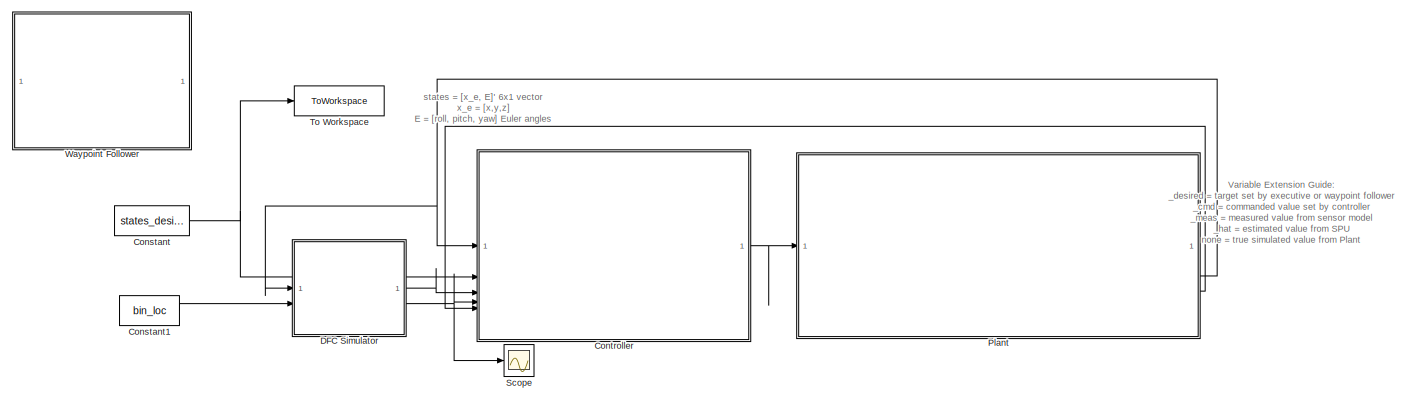
[diagram: root canvas - part 1/3, full width, top band]
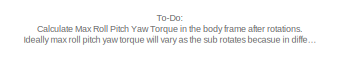
[diagram: root canvas - part 2/3, top right region]
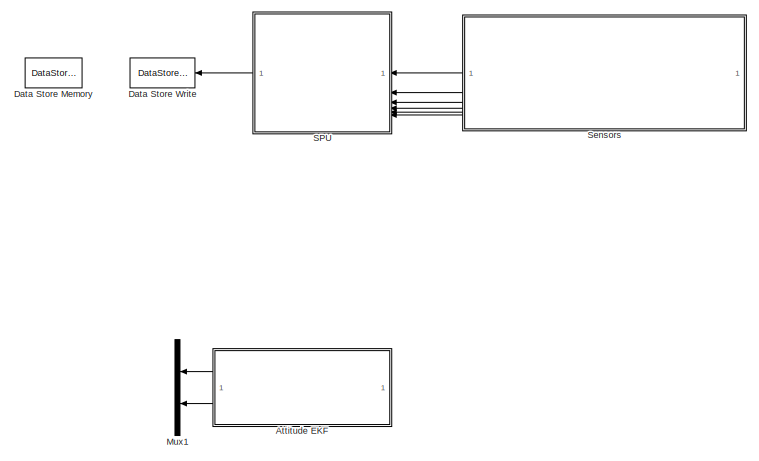
[diagram: root canvas - part 3/3, bottom center region]
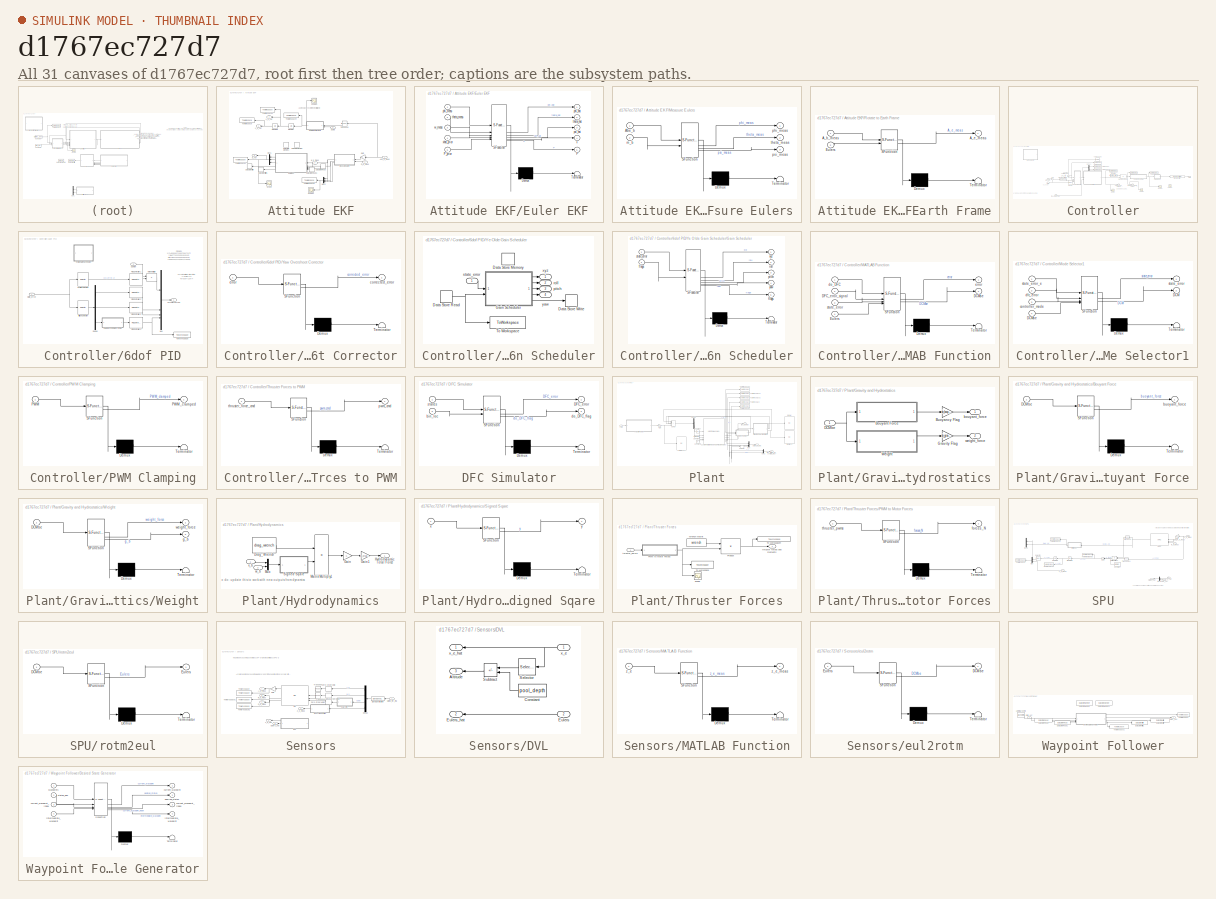
[diagram: thumbnail index - all 31 canvases of the model, root first then tree order]
MODEL slx_d1767ec727d7
KIND model
CONFIG AbsTol = auto
CONFIG EnableMultiTasking = off
CONFIG FixedStep = dt
CONFIG MaxStep = auto
CONFIG MinStep = auto
CONFIG RelTol = 1e-3
CONFIG SampleTimeConstraint = Unconstrained
CONFIG SolverName = FixedStepAuto
CONFIG StartTime = 0.0
CONFIG StopTime = tspan
WORKSPACE source: mxarray member
WORKSPACE Drag_Constants = 1
WORKSPACE mass = [5.51 5.51 5.51 1 1 1]
WORKSPACE mass_6a = [5 5 5 1 1 1]
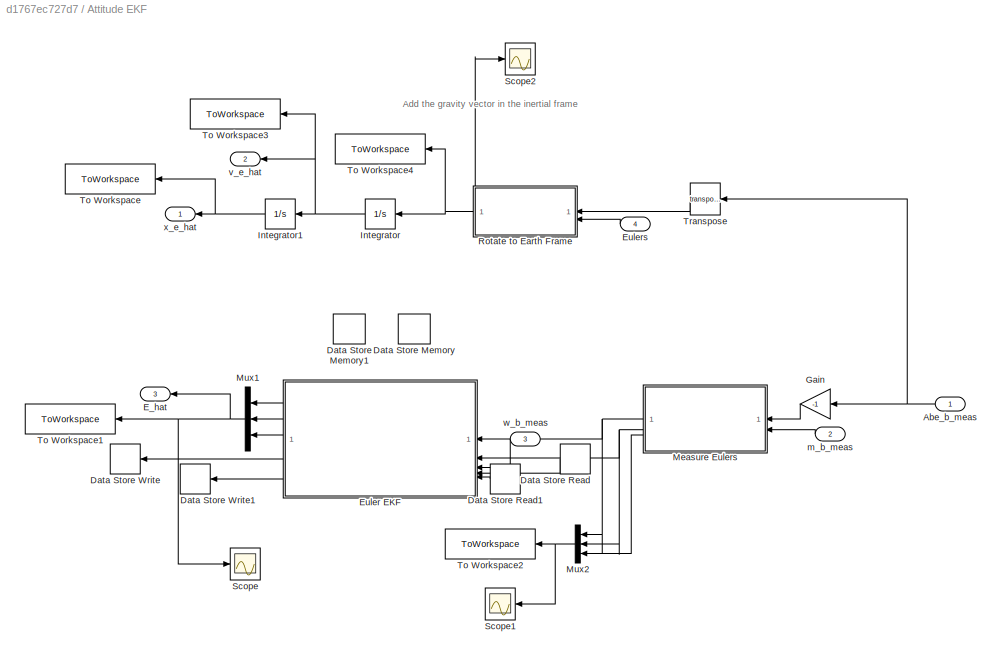
BLOCK [SubSystem] Attitude EKF
  Commented = on
BLOCK [Inport] Attitude EKF/Abe_b_meas
  SampleTime = dt_filter
BLOCK [DataStoreMemory] Attitude EKF/Data Store Memory
  DataStoreName = x_hat
  InitialValue = xhat0
  ShowAdditionalParam = off
  WriteAfterWriteMsg = warning
BLOCK [DataStoreMemory] Attitude EKF/Data Store Memory1
  DataStoreName = P
  InitialValue = P0
  ShowAdditionalParam = off
  WriteAfterWriteMsg = warning
BLOCK [DataStoreRead] Attitude EKF/Data Store Read
  DataStoreName = x_hat
  IndexOptions = Index vector (dialog)
  Indices = 1
  OutputSizes = 1
BLOCK [DataStoreRead] Attitude EKF/Data Store Read1
  DataStoreName = P
  IndexOptions = Index vector (dialog)
  Indices = 1
  OutputSizes = 1
BLOCK [DataStoreWrite] Attitude EKF/Data Store Write
  DataStoreName = x_hat
  IndexOptions = Index vector (dialog)
  Indices = 1
  OutputSizes = 1
BLOCK [DataStoreWrite] Attitude EKF/Data Store Write1
  DataStoreName = P
  IndexOptions = Index vector (dialog)
  Indices = 1
  OutputSizes = 1
BLOCK [Outport] Attitude EKF/E_hat
  Port = 3
BLOCK [SubSystem] Attitude EKF/Euler EKF
  ErrorFcn = Stateflow.Translate.translate
  PermitHierarchicalResolution = ExplicitOnly
  SFBlockType = MATLAB Function
  TreatAsAtomicUnit = on
BLOCK [Demux] Attitude EKF/Euler EKF/ Demux 
  Outputs = 1
BLOCK [S-Function] Attitude EKF/Euler EKF/ SFunction 
  EnableBusSupport = off
  FunctionName = sf_sfun
  Parameters = H,Q,R,dt
  PortCounts = [5 6]
  SFcnIsStateOwnerBlock = off
  SFunctionDeploymentMode = off
  Tag = Stateflow S-Function 8
BLOCK [Terminator] Attitude EKF/Euler EKF/ Terminator 
BLOCK [Outport] Attitude EKF/Euler EKF/P
  Port = 5
BLOCK [Inport] Attitude EKF/Euler EKF/P_prior
  Port = 5
BLOCK [Outport] Attitude EKF/Euler EKF/phi_hat
BLOCK [Inport] Attitude EKF/Euler EKF/phi_meas
BLOCK [Outport] Attitude EKF/Euler EKF/psi_hat
  Port = 3
BLOCK [Outport] Attitude EKF/Euler EKF/theta_hat
  Port = 2
BLOCK [Inport] Attitude EKF/Euler EKF/theta_meas
  Port = 2
BLOCK [Inport] Attitude EKF/Euler EKF/w_meas
  Port = 3
BLOCK [Outport] Attitude EKF/Euler EKF/x
  Port = 4
BLOCK [Inport] Attitude EKF/Euler EKF/xhat_prior
  Port = 4
BLOCK [Inport] Attitude EKF/Eulers
  Port = 4
BLOCK [Gain] Attitude EKF/Gain
  Gain = -1
BLOCK [Integrator] Attitude EKF/Integrator
  InitialCondition = v0_e
BLOCK [Integrator] Attitude EKF/Integrator1
  InitialCondition = x0_e
BLOCK [SubSystem] Attitude EKF/Measure Eulers
  ErrorFcn = Stateflow.Translate.translate
  PermitHierarchicalResolution = ExplicitOnly
  SFBlockType = MATLAB Function
  TreatAsAtomicUnit = on
BLOCK [Demux] Attitude EKF/Measure Eulers/ Demux 
  Outputs = 1
BLOCK [S-Function] Attitude EKF/Measure Eulers/ SFunction 
  EnableBusSupport = off
  FunctionName = sf_sfun
  PortCounts = [2 4]
  SFcnIsStateOwnerBlock = off
  SFunctionDeploymentMode = off
  Tag = Stateflow S-Function 10
BLOCK [Terminator] Attitude EKF/Measure Eulers/ Terminator 
BLOCK [Inport] Attitude EKF/Measure Eulers/Abe_b
BLOCK [Inport] Attitude EKF/Measure Eulers/m_b
  Port = 2
BLOCK [Outport] Attitude EKF/Measure Eulers/phi_meas
BLOCK [Outport] Attitude EKF/Measure Eulers/psi_meas
  Port = 3
BLOCK [Outport] Attitude EKF/Measure Eulers/theta_meas
  Port = 2
BLOCK [Mux] Attitude EKF/Mux1
  DisplayOption = bar
  Inputs = 3
BLOCK [Mux] Attitude EKF/Mux2
  DisplayOption = bar
  Inputs = 3
BLOCK [SubSystem] Attitude EKF/Rotate to Earth Frame
  ErrorFcn = Stateflow.Translate.translate
  LibrarySourceBlock = simulink/User-Defined\nFunctions/MATLAB Function
  PermitHierarchicalResolution = ExplicitOnly
  SFBlockType = MATLAB Function
  TreatAsAtomicUnit = on
BLOCK [Demux] Attitude EKF/Rotate to Earth Frame/ Demux 
  Outputs = 1
BLOCK [S-Function] Attitude EKF/Rotate to Earth Frame/ SFunction 
  EnableBusSupport = off
  FunctionName = sf_sfun
  PortCounts = [2 2]
  SFcnIsStateOwnerBlock = off
  SFunctionDeploymentMode = off
  Tag = Stateflow S-Function 14
BLOCK [Terminator] Attitude EKF/Rotate to Earth Frame/ Terminator 
BLOCK [Inport] Attitude EKF/Rotate to Earth Frame/A_b_meas
BLOCK [Outport] Attitude EKF/Rotate to Earth Frame/A_e_meas
BLOCK [Inport] Attitude EKF/Rotate to Earth Frame/Eulers
  Port = 2
BLOCK [Scope] Attitude EKF/Scope
  ActiveDisplayYMaximum = 3.9244
  ActiveDisplayYMinimum = -3.9191
  DataLoggingVariableName = ScopeData1
  Floating = off
  GraphicalSettings = {"GraphicalSettings":{"LegacySettings":true,"Style":{"AxesScalingProperties":{"AlignXAxis":"Center","AlignYAxis":"Center","AutoScaleXAxisLimits":true,"AxesScaling":"Manual","AxesScalingNumUpdates":10,"ScaleAxesLimitsAtStop":true,"XAxisDataRange":100,"YAxisDataRange":80},"Style":{"AxesColor":"[0 0 0]","ChannelNames":[""],"ColorOrder":"[1 0.909803921568627 0.392156862745098;0.149019607843137 0.54901...<+675ch>  <repeated x5 — deduplicated; at blocks: Scope, Scope1, Scope2>
  LayoutDimensionsString = [1 1]
  MultipleDisplayCache = [{"MaxYLimMag":3.9244,"MaxYLimReal":3.9244,"MinYLimMag":0,"MinYLimReal":-3.9191,"PlotAsMagnitudePhase":false,"ShowGrid":true,"ShowLegend":false,"Title":"%<SignalLabel>","YLabel":""}]
  NumInputPorts = 1
  WasSavedAsWebScope = on
  WindowPosition = [364 389 560 420]
BLOCK [Scope] Attitude EKF/Scope1
  ActiveDisplayYMaximum = 2.1454
  ActiveDisplayYMinimum = -3.603
  DataLoggingVariableName = ScopeData2
  Floating = off
  LayoutDimensionsString = [1 1]
  MultipleDisplayCache = [{"MaxYLimMag":3.603,"MaxYLimReal":2.1454,"MinYLimMag":0,"MinYLimReal":-3.603,"PlotAsMagnitudePhase":false,"ShowGrid":true,"ShowLegend":false,"Title":"%<SignalLabel>","YLabel":""}]
  NumInputPorts = 1
  WasSavedAsWebScope = on
  WindowPosition = [124 174 761 604]
BLOCK [Scope] Attitude EKF/Scope2
  ActiveDisplayYMaximum = 23.469
  ActiveDisplayYMinimum = -10.4743
  DataLoggingVariableName = ScopeData4
  Floating = off
  LayoutDimensionsString = [1 1]
  MultipleDisplayCache = [{"MaxYLimMag":23.469,"MaxYLimReal":23.469,"MinYLimMag":0,"MinYLimReal":-10.4743,"PlotAsMagnitudePhase":false,"ShowGrid":true,"ShowLegend":false,"Title":"%<SignalLabel>","YLabel":""}]
  NumInputPorts = 1
  WasSavedAsWebScope = on
  WindowPosition = [1144 387 560 420]
BLOCK [ToWorkspace] Attitude EKF/To Workspace
  FixptAsFi = on
  MaxDataPoints = inf
  SampleTime = dt_plotting
  SaveFormat = Timeseries
  VariableName = x_e_hat
BLOCK [ToWorkspace] Attitude EKF/To Workspace1
  FixptAsFi = on
  MaxDataPoints = inf
  SampleTime = dt_plotting
  SaveFormat = Timeseries
  VariableName = euler_hat
BLOCK [ToWorkspace] Attitude EKF/To Workspace2
  FixptAsFi = on
  MaxDataPoints = inf
  SampleTime = dt_plotting
  SaveFormat = Timeseries
  VariableName = euler_meas
BLOCK [ToWorkspace] Attitude EKF/To Workspace3
  FixptAsFi = on
  MaxDataPoints = inf
  SampleTime = dt_plotting
  SaveFormat = Timeseries
  VariableName = v_e_hat
BLOCK [ToWorkspace] Attitude EKF/To Workspace4
  FixptAsFi = on
  MaxDataPoints = inf
  SampleTime = -1
  SaveFormat = Timeseries
  VariableName = a_e_meas
BLOCK [Math] Attitude EKF/Transpose
  Operator = transpose
BLOCK [Inport] Attitude EKF/m_b_meas
  Port = 2
  SampleTime = dt_filter
BLOCK [Outport] Attitude EKF/v_e_hat
  Port = 2
BLOCK [Inport] Attitude EKF/w_b_meas
  Port = 3
BLOCK [Outport] Attitude EKF/x_e_hat
BLOCK [Constant] Constant
  Value = states_desired
BLOCK [Constant] Constant1
  Value = bin_loc
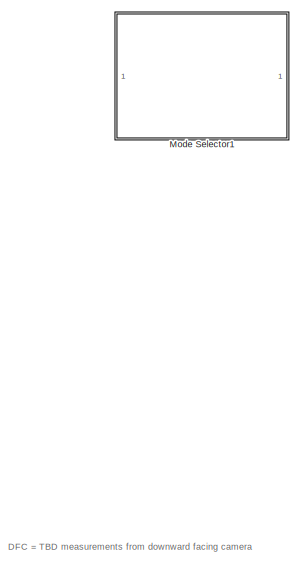
[diagram: Controller - part 1/3, left side, full height]
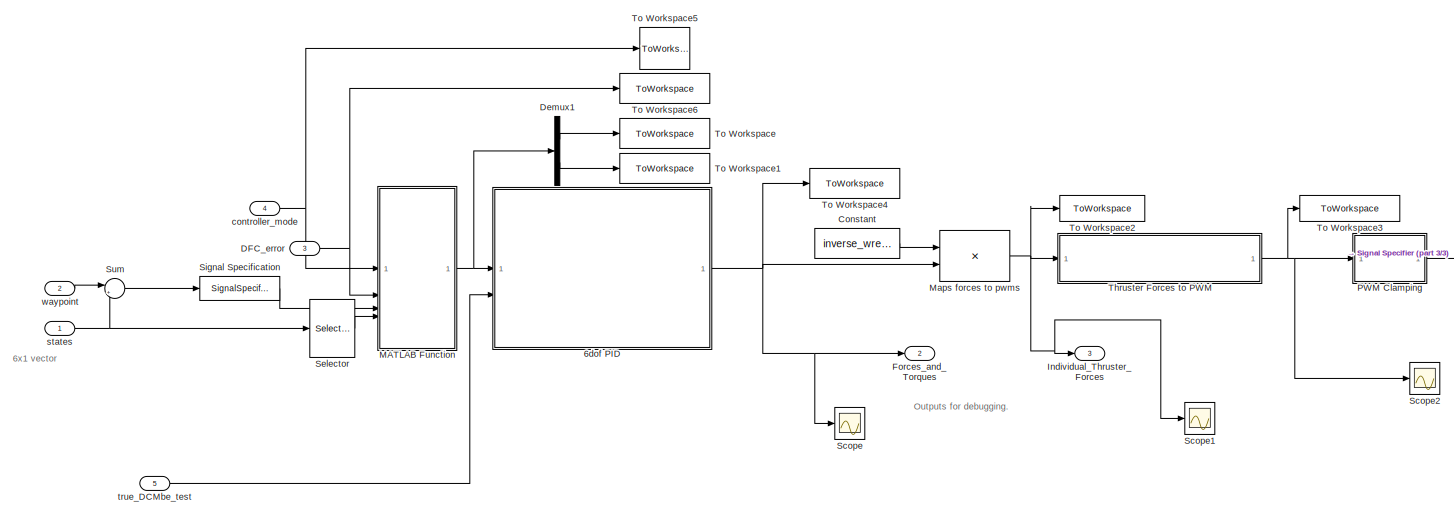
[diagram: Controller - part 2/3, center side, full height]
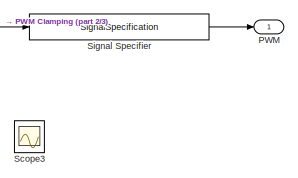
[diagram: Controller - part 3/3, bottom right region]
BLOCK [SubSystem] Controller
  TreatAsAtomicUnit = on
BLOCK [SubSystem] Controller/6dof PID
BLOCK [Selector] Controller/6dof PID/Attitude Selection
  IndexOptions = Index vector (dialog)
  Indices = [4:6]
  InputPortWidth = 6
  OutputSizes = 1
BLOCK [Inport] Controller/6dof PID/DCMbe
  Port = 2
BLOCK [Demux] Controller/6dof PID/Demux
  Outputs = 3
BLOCK [Product] Controller/6dof PID/Matrix Multiply
  Multiplication = Matrix(*)
BLOCK [Mux] Controller/6dof PID/Mux
  DisplayOption = bar
BLOCK [Reference] Controller/6dof PID/PID Controller1  REF=slpidlib/PID Controller
  LibrarySourceBlock = simulink/Continuous/PID Controller
  SourceBlock = slpidlib/PID Controller
  SourceType = PID 1dof
BLOCK [Reference] Controller/6dof PID/PID Controller2  REF=slpidlib/PID Controller
  LibrarySourceBlock = simulink/Continuous/PID Controller
  SourceBlock = slpidlib/PID Controller
  SourceType = PID 1dof
BLOCK [Reference] Controller/6dof PID/PID Controller3  REF=slpidlib/PID Controller
  LibrarySourceBlock = simulink/Continuous/PID Controller
  SourceBlock = slpidlib/PID Controller
  SourceType = PID 1dof
BLOCK [Reference] Controller/6dof PID/PID Controller4  REF=slpidlib/PID Controller
  LibrarySourceBlock = simulink/Continuous/PID Controller
  SourceBlock = slpidlib/PID Controller
  SourceType = PID 1dof
BLOCK [Selector] Controller/6dof PID/Position Selection
  IndexOptions = Index vector (dialog)
  Indices = [1:3]
  InputPortWidth = 6
  OutputSizes = 1
BLOCK [Outport] Controller/6dof PID/Thruster Forces
BLOCK [ToWorkspace] Controller/6dof PID/To Workspace
  FixptAsFi = on
  MaxDataPoints = inf
  SampleTime = dt_plotting
  SaveFormat = Timeseries
  VariableName = yaw_torque
BLOCK [SubSystem] Controller/6dof PID/Yaw Overshoot Corrector
  ErrorFcn = Stateflow.Translate.translate
  PermitHierarchicalResolution = ExplicitOnly
  SFBlockType = MATLAB Function
  TreatAsAtomicUnit = on
BLOCK [Demux] Controller/6dof PID/Yaw Overshoot Corrector/ Demux 
  Outputs = 1
BLOCK [S-Function] Controller/6dof PID/Yaw Overshoot Corrector/ SFunction 
  EnableBusSupport = off
  FunctionName = sf_sfun
  PortCounts = [1 2]
  SFcnIsStateOwnerBlock = off
  SFunctionDeploymentMode = off
  Tag = Stateflow S-Function 13
BLOCK [Terminator] Controller/6dof PID/Yaw Overshoot Corrector/ Terminator 
BLOCK [Outport] Controller/6dof PID/Yaw Overshoot Corrector/corrected_error
BLOCK [Inport] Controller/6dof PID/Yaw Overshoot Corrector/error
BLOCK [SubSystem] Controller/6dof PID/Ye Olde Gain Scheduler
  Commented = on
BLOCK [DataStoreMemory] Controller/6dof PID/Ye Olde Gain Scheduler/Data Store Memory
  DataStoreName = flags
  InitialValue = [1 1 0]
  ShowAdditionalParam = off
  WriteAfterWriteMsg = warning
BLOCK [DataStoreRead] Controller/6dof PID/Ye Olde Gain Scheduler/Data Store Read
  Commented = on
  DataStoreName = flags
  IndexOptions = Index vector (dialog)
  Indices = 1
  OutputSizes = 1
BLOCK [DataStoreWrite] Controller/6dof PID/Ye Olde Gain Scheduler/Data Store Write
  Commented = on
  DataStoreName = flags
  IndexOptions = Index vector (dialog)
  Indices = 1
  OutputSizes = 1
BLOCK [SubSystem] Controller/6dof PID/Ye Olde Gain Scheduler/Gain Scheduler
  Commented = on
  ErrorFcn = Stateflow.Translate.translate
  PermitHierarchicalResolution = ExplicitOnly
  SFBlockType = MATLAB Function
  TreatAsAtomicUnit = on
BLOCK [Demux] Controller/6dof PID/Ye Olde Gain Scheduler/Gain Scheduler/ Demux 
  Outputs = 1
BLOCK [S-Function] Controller/6dof PID/Ye Olde Gain Scheduler/Gain Scheduler/ SFunction 
  EnableBusSupport = off
  FunctionName = sf_sfun
  PortCounts = [2 6]
  SFcnIsStateOwnerBlock = off
  SFunctionDeploymentMode = off
  Tag = Stateflow S-Function 11
BLOCK [Terminator] Controller/6dof PID/Ye Olde Gain Scheduler/Gain Scheduler/ Terminator 
BLOCK [Outport] Controller/6dof PID/Ye Olde Gain Scheduler/Gain Scheduler/flags
  Port = 5
BLOCK [Inport] Controller/6dof PID/Ye Olde Gain Scheduler/Gain Scheduler/flags 
  Port = 2
BLOCK [Outport] Controller/6dof PID/Ye Olde Gain Scheduler/Gain Scheduler/pitch
  Port = 3
BLOCK [Outport] Controller/6dof PID/Ye Olde Gain Scheduler/Gain Scheduler/roll
  Port = 2
BLOCK [Inport] Controller/6dof PID/Ye Olde Gain Scheduler/Gain Scheduler/state_error
BLOCK [Outport] Controller/6dof PID/Ye Olde Gain Scheduler/Gain Scheduler/xyz
BLOCK [Outport] Controller/6dof PID/Ye Olde Gain Scheduler/Gain Scheduler/yaw
  Port = 4
BLOCK [ToWorkspace] Controller/6dof PID/Ye Olde Gain Scheduler/To Workspace
  Commented = on
  FixptAsFi = on
  MaxDataPoints = inf
  SampleTime = dt_plotting
  SaveFormat = Timeseries
  VariableName = flags
BLOCK [Outport] Controller/6dof PID/Ye Olde Gain Scheduler/pitch
  Port = 3
BLOCK [Outport] Controller/6dof PID/Ye Olde Gain Scheduler/roll
  Port = 2
BLOCK [Inport] Controller/6dof PID/Ye Olde Gain Scheduler/state_error
BLOCK [Outport] Controller/6dof PID/Ye Olde Gain Scheduler/xyz
BLOCK [Outport] Controller/6dof PID/Ye Olde Gain Scheduler/yaw
  Port = 4
BLOCK [Inport] Controller/6dof PID/state_error
  SampleTime = dt_controller
BLOCK [Constant] Controller/Constant
  Value = inverse_wrench
BLOCK [Inport] Controller/DFC_error
  Port = 3
BLOCK [Demux] Controller/Demux1
  Outputs = 2
BLOCK [Outport] Controller/Forces_and_Torques
  Port = 2
BLOCK [Outport] Controller/Individual_Thruster_Forces
  Port = 3
BLOCK [SubSystem] Controller/MATLAB Function
  ErrorFcn = Stateflow.Translate.translate
  PermitHierarchicalResolution = ExplicitOnly
  SFBlockType = MATLAB Function
  TreatAsAtomicUnit = on
BLOCK [Demux] Controller/MATLAB Function/ Demux 
  Outputs = 1
BLOCK [S-Function] Controller/MATLAB Function/ SFunction 
  EnableBusSupport = off
  FunctionName = sf_sfun
  PortCounts = [4 3]
  SFcnIsStateOwnerBlock = off
  SFunctionDeploymentMode = off
  Tag = Stateflow S-Function 17
BLOCK [Terminator] Controller/MATLAB Function/ Terminator 
BLOCK [Outport] Controller/MATLAB Function/DCMbe
  Port = 2
BLOCK [Inport] Controller/MATLAB Function/DFC_error_signal
  Port = 2
BLOCK [Inport] Controller/MATLAB Function/Eulers
  Port = 4
BLOCK [Inport] Controller/MATLAB Function/do_DFC
BLOCK [Outport] Controller/MATLAB Function/error
BLOCK [Inport] Controller/MATLAB Function/state_error
  Port = 3
BLOCK [Product] Controller/Maps forces to pwms
  Multiplication = Matrix(*)
BLOCK [SubSystem] Controller/Mode Selector1
  Commented = on
  ErrorFcn = Stateflow.Translate.translate
  LibrarySourceBlock = simulink/User-Defined\nFunctions/MATLAB Function
  PermitHierarchicalResolution = ExplicitOnly
  SFBlockType = MATLAB Function
  TreatAsAtomicUnit = on
BLOCK [Demux] Controller/Mode Selector1/ Demux 
  Outputs = 1
BLOCK [S-Function] Controller/Mode Selector1/ SFunction 
  EnableBusSupport = off
  FunctionName = sf_sfun
  PortCounts = [4 3]
  SFcnIsStateOwnerBlock = off
  SFunctionDeploymentMode = off
  Tag = Stateflow S-Function 19
BLOCK [Terminator] Controller/Mode Selector1/ Terminator 
BLOCK [Outport] Controller/Mode Selector1/DCM
  Port = 2
BLOCK [Inport] Controller/Mode Selector1/DCMbe
  Port = 4
BLOCK [Inport] Controller/Mode Selector1/controller_mode
  Port = 3
BLOCK [Inport] Controller/Mode Selector1/dfc_error
  Port = 2
BLOCK [Outport] Controller/Mode Selector1/state_error
BLOCK [Inport] Controller/Mode Selector1/state_error_e
BLOCK [Outport] Controller/PWM
BLOCK [SubSystem] Controller/PWM Clamping
  ErrorFcn = Stateflow.Translate.translate
  LibrarySourceBlock = simulink/User-Defined\nFunctions/MATLAB Function
  PermitHierarchicalResolution = ExplicitOnly
  SFBlockType = MATLAB Function
  TreatAsAtomicUnit = on
BLOCK [Demux] Controller/PWM Clamping/ Demux 
  Outputs = 1
BLOCK [S-Function] Controller/PWM Clamping/ SFunction 
  EnableBusSupport = off
  FunctionName = sf_sfun
  PortCounts = [1 2]
  SFcnIsStateOwnerBlock = off
  SFunctionDeploymentMode = off
  Tag = Stateflow S-Function 15
BLOCK [Terminator] Controller/PWM Clamping/ Terminator 
BLOCK [Inport] Controller/PWM Clamping/PWM
BLOCK [Outport] Controller/PWM Clamping/PWM_clamped
BLOCK [Scope] Controller/Scope
  ActiveDisplayYMaximum = 38.80877
  ActiveDisplayYMinimum = -9.86764
  DataLoggingVariableName = ScopeData1
  Floating = off
  GraphicalSettings = {"GraphicalSettings":{"LegacySettings":true,"Style":{"Style":{"AxesColor":"[0 0 0]","ChannelNames":[""],"ColorOrder":"[1 1 0.0666666666666667;0.0745098039215686 0.623529411764706 1;1 0.411764705882353 0.16078431372549;0.392156862745098 0.831372549019608 0.0745098039215686;0.717647058823529 0.274509803921569 1;0.0588235294117647 1 1;1 0.0745098039215686 0.650980392156863]","CurrentConfiguration":"e...<+402ch>
  MultipleDisplayCache = [{"MaxYLimMag":38.80877,"MaxYLimReal":38.80877,"MinYLimMag":0,"MinYLimReal":-9.86764,"PlotAsMagnitudePhase":false,"ShowGrid":true,"ShowLegend":false,"Title":"%<SignalLabel>","YLabel":""}]
  NumInputPorts = 1
  WasSavedAsWebScope = on
BLOCK [Scope] Controller/Scope1
  ActiveDisplayYMaximum = 31.49765
  ActiveDisplayYMinimum = -23.8285
  DataLoggingVariableName = ScopeData2
  Floating = off
  GraphicalSettings = {"GraphicalSettings":{"LegacySettings":true,"Style":{"Style":{"AxesColor":"[0 0 0]","ChannelNames":[""],"ColorOrder":"[1 1 0.0666666666666667;0.0745098039215686 0.623529411764706 1;1 0.411764705882353 0.16078431372549;0.392156862745098 0.831372549019608 0.0745098039215686;0.717647058823529 0.274509803921569 1;0.0588235294117647 1 1;1 0.0745098039215686 0.650980392156863]","CurrentConfiguration":"e...<+408ch>
  MultipleDisplayCache = [{"MaxYLimMag":31.49765,"MaxYLimReal":31.49765,"MinYLimMag":0,"MinYLimReal":-23.8285,"PlotAsMagnitudePhase":false,"ShowGrid":true,"ShowLegend":false,"Title":"%<SignalLabel>","YLabel":""}]
  NumInputPorts = 1
  WasSavedAsWebScope = on
BLOCK [Scope] Controller/Scope2
  ActiveDisplayYMaximum = 1846.25
  ActiveDisplayYMinimum = 1173.75
  DataLoggingVariableName = ScopeData3
  Floating = off
  GraphicalSettings = {"GraphicalSettings":{"LegacySettings":true,"Style":{"Style":{"AxesColor":"[0 0 0]","ChannelNames":[""],"ColorOrder":"[1 1 0.0666666666666667;0.0745098039215686 0.623529411764706 1;1 0.411764705882353 0.16078431372549;0.392156862745098 0.831372549019608 0.0745098039215686;0.717647058823529 0.274509803921569 1;0.0588235294117647 1 1;1 0.0745098039215686 0.650980392156863]","CurrentConfiguration":"e...<+421ch>
  MultipleDisplayCache = [{"MaxYLimMag":1846.25,"MaxYLimReal":1846.25,"MinYLimMag":1173.75,"MinYLimReal":1173.75,"PlotAsMagnitudePhase":false,"ShowGrid":true,"ShowLegend":false,"Title":"%<SignalLabel>","YLabel":""}]
  NumInputPorts = 1
  WasSavedAsWebScope = on
BLOCK [Scope] Controller/Scope3
  ActiveDisplayYMaximum = 1
  ActiveDisplayYMinimum = -1
  DataLoggingVariableName = ScopeData4
  Floating = off
  GraphicalSettings = {"GraphicalSettings":{"LegacySettings":true,"Style":{"Style":{"AxesColor":"[0 0 0]","ChannelNames":[""],"ColorOrder":"[1 1 0.0666666666666667;0.0745098039215686 0.623529411764706 1;1 0.411764705882353 0.16078431372549;0.392156862745098 0.831372549019608 0.0745098039215686;0.717647058823529 0.274509803921569 1;0.0588235294117647 1 1;1 0.0745098039215686 0.650980392156863]","CurrentConfiguration":"e...<+401ch>
  MultipleDisplayCache = [{"MaxYLimMag":1,"MaxYLimReal":1,"MinYLimMag":0,"MinYLimReal":-1,"PlotAsMagnitudePhase":false,"ShowGrid":true,"ShowLegend":false,"Title":"%<SignalLabel>","YLabel":""}]
  NumInputPorts = 1
  WasSavedAsWebScope = on
BLOCK [Selector] Controller/Selector
  IndexOptions = Index vector (dialog)
  Indices = [4 5 6]
  InputPortWidth = 6
  OutputSizes = 1
BLOCK [SignalSpecification] Controller/Signal Specification
  Dimensions = [6 1]
BLOCK [SignalSpecification] Controller/Signal Specifier
  Dimensions = [8 1]
  OutDataTypeStr = double
  OutMax = [ 1800 ]
  OutMin = [1200 ]
  Unit = µs
  VarSizeSig = No
BLOCK [Sum] Controller/Sum
  Inputs = |+-
BLOCK [SubSystem] Controller/Thruster Forces to PWM
  ErrorFcn = Stateflow.Translate.translate
  PermitHierarchicalResolution = ExplicitOnly
  SFBlockType = MATLAB Function
  TreatAsAtomicUnit = on
BLOCK [Demux] Controller/Thruster Forces to PWM/ Demux 
  Outputs = 1
BLOCK [S-Function] Controller/Thruster Forces to PWM/ SFunction 
  EnableBusSupport = off
  FunctionName = sf_sfun
  PortCounts = [1 2]
  SFcnIsStateOwnerBlock = off
  SFunctionDeploymentMode = off
  Tag = Stateflow S-Function 4
BLOCK [Terminator] Controller/Thruster Forces to PWM/ Terminator 
BLOCK [Outport] Controller/Thruster Forces to PWM/pwm_cmd
BLOCK [Inport] Controller/Thruster Forces to PWM/thruster_force_cmd
BLOCK [ToWorkspace] Controller/To Workspace
  FixptAsFi = on
  MaxDataPoints = inf
  SampleTime = dt_plotting
  SaveFormat = Timeseries
  VariableName = x_error
BLOCK [ToWorkspace] Controller/To Workspace1
  FixptAsFi = on
  MaxDataPoints = inf
  SampleTime = dt_plotting
  SaveFormat = Timeseries
  VariableName = E_error
BLOCK [ToWorkspace] Controller/To Workspace2
  FixptAsFi = on
  MaxDataPoints = inf
  SampleTime = dt_plotting
  SaveFormat = Timeseries
  VariableName = thruster_cmd
BLOCK [ToWorkspace] Controller/To Workspace3
  FixptAsFi = on
  MaxDataPoints = inf
  SampleTime = dt_plotting
  SaveFormat = Timeseries
  VariableName = pwm_cmd
BLOCK [ToWorkspace] Controller/To Workspace4
  FixptAsFi = on
  MaxDataPoints = inf
  SampleTime = dt_plotting
  SaveFormat = Timeseries
  VariableName = force_torque_cmd
BLOCK [ToWorkspace] Controller/To Workspace5
  MaxDataPoints = inf
  SampleTime = dt_plotting
  Save2DSignal = 2-D array (concatenate along first dimension)
  VariableName = do_DFC
BLOCK [ToWorkspace] Controller/To Workspace6
  FixptAsFi = on
  MaxDataPoints = inf
  SampleTime = dt_plotting
  SaveFormat = Timeseries
  VariableName = dfc_error
BLOCK [Inport] Controller/controller_mode
  Port = 4
BLOCK [Inport] Controller/states
  SampleTime = dt_controller
BLOCK [Inport] Controller/true_DCMbe_test
  Port = 5
BLOCK [Inport] Controller/waypoint
  Port = 2
  SampleTime = dt_controller
BLOCK [SubSystem] DFC Simulator
  ErrorFcn = Stateflow.Translate.translate
  PermitHierarchicalResolution = ExplicitOnly
  SFBlockType = MATLAB Function
  TreatAsAtomicUnit = on
BLOCK [Demux] DFC Simulator/ Demux 
  Outputs = 1
BLOCK [S-Function] DFC Simulator/ SFunction 
  EnableBusSupport = off
  FunctionName = sf_sfun
  PortCounts = [2 3]
  SFcnIsStateOwnerBlock = off
  SFunctionDeploymentMode = off
  Tag = Stateflow S-Function 16
BLOCK [Terminator] DFC Simulator/ Terminator 
BLOCK [Outport] DFC Simulator/DFC_error
BLOCK [Inport] DFC Simulator/bin_loc
  Port = 2
BLOCK [Outport] DFC Simulator/do_DFC_flag
  Port = 2
BLOCK [Inport] DFC Simulator/states
BLOCK [DataStoreMemory] Data Store Memory
  DataStoreName = states_hat
  InitialValue = [0;0;0;0;0;0]
  ShowAdditionalParam = off
  WriteAfterWriteMsg = warning
BLOCK [DataStoreWrite] Data Store Write
  Commented = on
  DataStoreName = states_hat
  IndexOptions = Index vector (dialog)
  Indices = 1
  OutputSizes = 1
BLOCK [Mux] Mux1
  Commented = on
  DisplayOption = bar
  Inputs = 2
BLOCK [SubSystem] Plant
BLOCK [Constant] Plant/Constant
  Value = P.m
BLOCK [Constant] Plant/Constant1
  Value = P.I
BLOCK [Constant] Plant/Constant2
  Value = zeros(3)
BLOCK [Reference] Plant/Custom Variable Mass 6DOF (Euler Angles)  REF=aerolibobsolete/6DOF (Euler Angles)
  SourceBlock = aerolibobsolete/6DOF (Euler Angles)
  SourceType = 6DOF EoM (Body Axis)
BLOCK [Demux] Plant/Demux
  Outputs = 2
BLOCK [Display] Plant/Display
  Decimation = 1
BLOCK [Display] Plant/Display1
  Decimation = 1
BLOCK [Display] Plant/Display2
  Decimation = 1
BLOCK [Gain] Plant/Gain
  Gain = do_control_force_flag
BLOCK [SubSystem] Plant/Gravity and Hydrostatics
BLOCK [SubSystem] Plant/Gravity and Hydrostatics/Bouyant Force
  ErrorFcn = Stateflow.Translate.translate
  PermitHierarchicalResolution = ExplicitOnly
  SFBlockType = MATLAB Function
  TreatAsAtomicUnit = on
BLOCK [Demux] Plant/Gravity and Hydrostatics/Bouyant Force/ Demux 
  Outputs = 1
BLOCK [S-Function] Plant/Gravity and Hydrostatics/Bouyant Force/ SFunction 
  EnableBusSupport = off
  FunctionName = sf_sfun
  Parameters = g,volume,volume_center,water_density
  PortCounts = [1 2]
  SFcnIsStateOwnerBlock = off
  SFunctionDeploymentMode = off
  Tag = Stateflow S-Function 5
BLOCK [Terminator] Plant/Gravity and Hydrostatics/Bouyant Force/ Terminator 
BLOCK [Inport] Plant/Gravity and Hydrostatics/Bouyant Force/DCMbe
BLOCK [Outport] Plant/Gravity and Hydrostatics/Bouyant Force/buoyant_force
BLOCK [Gain] Plant/Gravity and Hydrostatics/Buoyancy Flag
  Gain = do_bouyancy_flag
BLOCK [Inport] Plant/Gravity and Hydrostatics/DCMbe
BLOCK [Gain] Plant/Gravity and Hydrostatics/Gravity Flag
  Gain = do_gravity_flag
BLOCK [SubSystem] Plant/Gravity and Hydrostatics/Weight
  ErrorFcn = Stateflow.Translate.translate
  PermitHierarchicalResolution = ExplicitOnly
  SFBlockType = MATLAB Function
  TreatAsAtomicUnit = on
BLOCK [Demux] Plant/Gravity and Hydrostatics/Weight/ Demux 
  Outputs = 1
BLOCK [S-Function] Plant/Gravity and Hydrostatics/Weight/ SFunction 
  EnableBusSupport = off
  FunctionName = sf_sfun
  Parameters = P,g
  PortCounts = [1 3]
  SFcnIsStateOwnerBlock = off
  SFunctionDeploymentMode = off
  Tag = Stateflow S-Function 6
BLOCK [Terminator] Plant/Gravity and Hydrostatics/Weight/ Terminator 
BLOCK [Inport] Plant/Gravity and Hydrostatics/Weight/DCMbe
BLOCK [Outport] Plant/Gravity and Hydrostatics/Weight/g_b
  Port = 2
BLOCK [Outport] Plant/Gravity and Hydrostatics/Weight/weight_force
BLOCK [Outport] Plant/Gravity and Hydrostatics/bouyant_force
BLOCK [Outport] Plant/Gravity and Hydrostatics/weight_force
  Port = 2
BLOCK [SubSystem] Plant/Hydrodynamics
BLOCK [Constant] Plant/Hydrodynamics/Drag_Wrench
  Value = drag_wrench
  VectorParams1D = off
BLOCK [Gain] Plant/Hydrodynamics/Gain
  Gain = -1
BLOCK [Gain] Plant/Hydrodynamics/Gain1
  Gain = do_drag_flag
BLOCK [Outport] Plant/Hydrodynamics/Hydrodynamic Total Force
BLOCK [Product] Plant/Hydrodynamics/Matrix Multiply1
  Multiplication = Matrix(*)
BLOCK [Mux] Plant/Hydrodynamics/Mux
  DisplayOption = bar
  Inputs = 2
BLOCK [SubSystem] Plant/Hydrodynamics/Signed Sqare
  ErrorFcn = Stateflow.Translate.translate
  PermitHierarchicalResolution = ExplicitOnly
  SFBlockType = MATLAB Function
  TreatAsAtomicUnit = on
BLOCK [Demux] Plant/Hydrodynamics/Signed Sqare/ Demux 
  Outputs = 1
BLOCK [S-Function] Plant/Hydrodynamics/Signed Sqare/ SFunction 
  EnableBusSupport = off
  FunctionName = sf_sfun
  PortCounts = [1 2]
  SFcnIsStateOwnerBlock = off
  SFunctionDeploymentMode = off
  Tag = Stateflow S-Function 1
BLOCK [Terminator] Plant/Hydrodynamics/Signed Sqare/ Terminator 
BLOCK [Inport] Plant/Hydrodynamics/Signed Sqare/x
BLOCK [Outport] Plant/Hydrodynamics/Signed Sqare/y
BLOCK [Inport] Plant/Hydrodynamics/v_b
BLOCK [Inport] Plant/Hydrodynamics/w_b
  Port = 2
BLOCK [Mux] Plant/Mux
  DisplayOption = bar
BLOCK [Mux] Plant/Mux1
  DisplayOption = bar
  Inputs = 2
BLOCK [Inport] Plant/PWM
  SampleTime = dt
BLOCK [Selector] Plant/Selector
  IndexOptions = Index vector (dialog)
  Indices = [3]
  InputPortWidth = 3
  OutputSizes = 1
BLOCK [Sum] Plant/Sum2
  IconShape = rectangular
  Inputs = ++++
BLOCK [SubSystem] Plant/Thruster Forces
BLOCK [SubSystem] Plant/Thruster Forces/PWM to Motor Forces
  ErrorFcn = Stateflow.Translate.translate
  PermitHierarchicalResolution = ExplicitOnly
  SFBlockType = MATLAB Function
  TreatAsAtomicUnit = on
BLOCK [Demux] Plant/Thruster Forces/PWM to Motor Forces/ Demux 
  Outputs = 1
BLOCK [S-Function] Plant/Thruster Forces/PWM to Motor Forces/ SFunction 
  EnableBusSupport = off
  FunctionName = sf_sfun
  PortCounts = [1 2]
  SFcnIsStateOwnerBlock = off
  SFunctionDeploymentMode = off
  Tag = Stateflow S-Function 2
BLOCK [Terminator] Plant/Thruster Forces/PWM to Motor Forces/ Terminator 
BLOCK [Outport] Plant/Thruster Forces/PWM to Motor Forces/forces_N
BLOCK [Inport] Plant/Thruster Forces/PWM to Motor Forces/thruster_pwms
BLOCK [Product] Plant/Thruster Forces/Product
  Multiplication = Matrix(*)
BLOCK [Scope] Plant/Thruster Forces/Scope
  ActiveDisplayYMaximum = 55.5387
  ActiveDisplayYMinimum = -45.3233
  DataLoggingVariableName = ScopeData3
  Floating = off
  LayoutDimensionsString = [1 1]
  MultipleDisplayCache = [{"MaxYLimMag":55.5387,"MaxYLimReal":55.5387,"MinYLimMag":0,"MinYLimReal":-45.3233,"PlotAsMagnitudePhase":false,"ShowGrid":true,"ShowLegend":false,"Title":"%<SignalLabel>","YLabel":""}]
  NumInputPorts = 1
  WasSavedAsWebScope = on
  WindowPosition = [791 217 560 420]
BLOCK [ToWorkspace] Plant/Thruster Forces/To Workspace
  FixptAsFi = on
  MaxDataPoints = inf
  SampleTime = dt_plotting
  SaveFormat = Timeseries
  VariableName = thruster_delivered
BLOCK [ToWorkspace] Plant/Thruster Forces/To Workspace4
  FixptAsFi = on
  MaxDataPoints = inf
  SampleTime = dt_plotting
  SaveFormat = Timeseries
  VariableName = force_torque_delivered
BLOCK [Constant] Plant/Thruster Forces/Wrench Matrix
  Value = wrench
  VectorParams1D = off
BLOCK [Outport] Plant/Thruster Forces/thruster forces and moments
BLOCK [Inport] Plant/Thruster Forces/thruster_pwms
  SampleTime = dt
BLOCK [ToWorkspace] Plant/To Workspace
  FixptAsFi = on
  MaxDataPoints = inf
  SampleTime = dt_plotting
  SaveFormat = Timeseries
  VariableName = E
BLOCK [ToWorkspace] Plant/To Workspace1
  FixptAsFi = on
  MaxDataPoints = inf
  SampleTime = dt_plotting
  SaveFormat = Timeseries
  VariableName = x_e
BLOCK [ToWorkspace] Plant/To Workspace2
  FixptAsFi = on
  MaxDataPoints = inf
  SampleTime = dt_plotting
  SaveFormat = Timeseries
  VariableName = w_b
BLOCK [ToWorkspace] Plant/To Workspace3
  FixptAsFi = on
  MaxDataPoints = inf
  SampleTime = dt_plotting
  SaveFormat = Timeseries
  VariableName = v_e
BLOCK [ToWorkspace] Plant/To Workspace4
  FixptAsFi = on
  MaxDataPoints = inf
  SampleTime = dt_plotting
  SaveFormat = Timeseries
  VariableName = A_be_b
BLOCK [Outport] Plant/states_for_imu
BLOCK [Outport] Plant/true_DCMbe
  Port = 3
BLOCK [Outport] Plant/true_states_for_controller_test
  Port = 2
BLOCK [SubSystem] SPU
  Commented = on
BLOCK [Reference] SPU/AHRS  REF=mspfiltlib/AHRS
  Commented = on
  SourceBlock = mspfiltlib/AHRS
  SourceType = fusion.simulink.ahrsfilter
BLOCK [Inport] SPU/A_b_meas
  SampleTime = dt_filter
BLOCK [Constant] SPU/Constant
  Commented = on
  Value = [0;0;g]
BLOCK [Inport] SPU/Eulers_hat
  Port = 6
BLOCK [Gain] SPU/Gain
  Commented = on
  Gain = -1
BLOCK [Integrator] SPU/Integrator1
  Commented = on
  InitialCondition = x0_e
BLOCK [Integrator] SPU/Integrator2
  Commented = on
  InitialCondition = v0_e
BLOCK [Product] SPU/Matrix Multiply3
  Commented = on
  Multiplication = Matrix(*)
BLOCK [Mux] SPU/Mux
  Commented = on
  DisplayOption = bar
  Inputs = 2
BLOCK [Mux] SPU/Mux1
  Commented = on
  DisplayOption = bar
  Inputs = 2
BLOCK [Mux] SPU/Mux2
  DisplayOption = bar
  Inputs = 2
BLOCK [Selector] SPU/Selector
  Commented = on
  IndexOptions = Index vector (dialog)
  Indices = [1 2]
  InputPortWidth = 3
  OutputSizes = 1
BLOCK [Sum] SPU/Sum
  Commented = on
  IconShape = rectangular
BLOCK [ToWorkspace] SPU/To Workspace
  Commented = on
  FixptAsFi = on
  MaxDataPoints = inf
  SampleTime = dt_plotting
  SaveFormat = Timeseries
  VariableName = x_e_hat
BLOCK [ToWorkspace] SPU/To Workspace1
  Commented = on
  FixptAsFi = on
  MaxDataPoints = inf
  SampleTime = dt_plotting
  SaveFormat = Timeseries
  VariableName = v_e_hat
BLOCK [ToWorkspace] SPU/To Workspace2
  Commented = on
  FixptAsFi = on
  MaxDataPoints = inf
  SampleTime = -1
  SaveFormat = Timeseries
  VariableName = A_e_meas
BLOCK [ToWorkspace] SPU/To Workspace3
  Commented = on
  FixptAsFi = on
  MaxDataPoints = inf
  SampleTime = -1
  SaveFormat = Timeseries
  VariableName = E_hat
BLOCK [Math] SPU/Transpose
  Commented = on
  Operator = transpose
BLOCK [Math] SPU/Transpose1
  Commented = on
  Operator = transpose
BLOCK [Inport] SPU/m_b_meas
  Port = 3
  SampleTime = dt_filter
BLOCK [SubSystem] SPU/rotm2eul
  Commented = on
  ErrorFcn = Stateflow.Translate.translate
  LibrarySourceBlock = simulink/User-Defined\nFunctions/MATLAB Function
  PermitHierarchicalResolution = ExplicitOnly
  SFBlockType = MATLAB Function
  TreatAsAtomicUnit = on
BLOCK [Demux] SPU/rotm2eul/ Demux 
  Outputs = 1
BLOCK [S-Function] SPU/rotm2eul/ SFunction 
  EnableBusSupport = off
  FunctionName = sf_sfun
  PortCounts = [1 2]
  SFcnIsStateOwnerBlock = off
  SFunctionDeploymentMode = off
  Tag = Stateflow S-Function 9
BLOCK [Terminator] SPU/rotm2eul/ Terminator 
BLOCK [Inport] SPU/rotm2eul/DCMbe
BLOCK [Outport] SPU/rotm2eul/Eulers
BLOCK [Outport] SPU/states_hat
BLOCK [Inport] SPU/w_b_meas
  Port = 2
  SampleTime = dt_filter
BLOCK [Inport] SPU/x_e_hat
  Port = 5
BLOCK [Inport] SPU/z_e_meas
  Port = 4
BLOCK [Scope] Scope
  ActiveDisplayYMaximum = 1.125
  ActiveDisplayYMinimum = -0.125
  DataLoggingVariableName = ScopeData1
  Floating = off
  LayoutDimensionsString = [1 1]
  MultipleDisplayCache = [{"MaxYLimMag":1.125,"MaxYLimReal":1.125,"MinYLimMag":0,"MinYLimReal":-0.125,"PlotAsMagnitudePhase":false,"ShowGrid":true,"ShowLegend":false,"Title":"%<SignalLabel>","YLabel":""}]
  NumInputPorts = 1
  WasSavedAsWebScope = on
  WindowPosition = [360 69 560 420]
BLOCK [SubSystem] Sensors
  Commented = on
BLOCK [Outport] Sensors/A_b_meas
BLOCK [SubSystem] Sensors/DVL
BLOCK [Outport] Sensors/DVL/Altitude
  Port = 3
BLOCK [Constant] Sensors/DVL/Constant
  Value = pool_depth
BLOCK [Inport] Sensors/DVL/Eulers
  Port = 2
BLOCK [Outport] Sensors/DVL/Eulers_hat
  Port = 2
BLOCK [Selector] Sensors/DVL/Selector
  IndexOptions = Index vector (dialog)
  Indices = [3]
  InputPortWidth = 3
  OutputSizes = 1
BLOCK [Sum] Sensors/DVL/Subtract
  IconShape = rectangular
  Inputs = -+
BLOCK [Inport] Sensors/DVL/x_e
BLOCK [Outport] Sensors/DVL/x_e_hat
BLOCK [Demux] Sensors/Demux
  Outputs = [3,3,3,1]
BLOCK [Outport] Sensors/Eulers_hat
  Port = 6
BLOCK [Gain] Sensors/Gain
  Gain = -1
BLOCK [Reference] Sensors/IMU  REF=mspsensorlib/IMU
  SourceBlock = mspsensorlib/IMU
  SourceType = fusion.simulink.imuSensor
BLOCK [SubSystem] Sensors/MATLAB Function
  ErrorFcn = Stateflow.Translate.translate
  LibrarySourceBlock = simulink/User-Defined\nFunctions/MATLAB Function
  PermitHierarchicalResolution = ExplicitOnly
  SFBlockType = MATLAB Function
  TreatAsAtomicUnit = on
BLOCK [Demux] Sensors/MATLAB Function/ Demux 
  Outputs = 1
BLOCK [S-Function] Sensors/MATLAB Function/ SFunction 
  EnableBusSupport = off
  FunctionName = sf_sfun
  PortCounts = [1 2]
  SFcnIsStateOwnerBlock = off
  SFunctionDeploymentMode = off
  Tag = Stateflow S-Function 12
BLOCK [Terminator] Sensors/MATLAB Function/ Terminator 
BLOCK [Inport] Sensors/MATLAB Function/z_e
BLOCK [Outport] Sensors/MATLAB Function/z_e_meas
BLOCK [SignalSpecification] Sensors/Signal Specification
  Dimensions = [10 1]
BLOCK [ToWorkspace] Sensors/To Workspace
  FixptAsFi = on
  MaxDataPoints = inf
  SampleTime = dt_plotting
  SaveFormat = Timeseries
  VariableName = A_b_meas
BLOCK [ToWorkspace] Sensors/To Workspace1
  FixptAsFi = on
  MaxDataPoints = inf
  SampleTime = dt_plotting
  SaveFormat = Timeseries
  VariableName = w_b_meas
BLOCK [ToWorkspace] Sensors/To Workspace2
  FixptAsFi = on
  MaxDataPoints = inf
  SampleTime = dt_plotting
  SaveFormat = Timeseries
  VariableName = m_b_meas
BLOCK [Math] Sensors/Transpose
  Operator = transpose
BLOCK [Math] Sensors/Transpose1
  Operator = transpose
BLOCK [ZeroOrderHold] Sensors/Zero-Order Hold
  SampleTime = dt_filter
BLOCK [ZeroOrderHold] Sensors/Zero-Order Hold1
  SampleTime = dt_filter
BLOCK [ZeroOrderHold] Sensors/Zero-Order Hold2
  SampleTime = dt_filter
BLOCK [SubSystem] Sensors/eul2rotm
  ErrorFcn = Stateflow.Translate.translate
  LibrarySourceBlock = simulink/User-Defined\nFunctions/MATLAB Function
  PermitHierarchicalResolution = ExplicitOnly
  SFBlockType = MATLAB Function
  TreatAsAtomicUnit = on
BLOCK [Demux] Sensors/eul2rotm/ Demux 
  Outputs = 1
BLOCK [S-Function] Sensors/eul2rotm/ SFunction 
  EnableBusSupport = off
  FunctionName = sf_sfun
  PortCounts = [1 2]
  SFcnIsStateOwnerBlock = off
  SFunctionDeploymentMode = off
  Tag = Stateflow S-Function 3
BLOCK [Terminator] Sensors/eul2rotm/ Terminator 
BLOCK [Outport] Sensors/eul2rotm/DCMbe
BLOCK [Inport] Sensors/eul2rotm/Eulers
BLOCK [Outport] Sensors/m_b_meas
  Port = 3
BLOCK [Inport] Sensors/states_for_imu
  SampleTime = dt_imu
BLOCK [Outport] Sensors/w_b_meas
  Port = 2
BLOCK [Outport] Sensors/x_e_hat
  Port = 5
BLOCK [Outport] Sensors/z_e_meas
  Port = 4
BLOCK [ToWorkspace] To Workspace
  FixptAsFi = on
  MaxDataPoints = inf
  SampleTime = dt_plotting
  SaveFormat = Timeseries
  VariableName = desired_states
BLOCK [SubSystem] Waypoint Follower
  Commented = on
BLOCK [DataStoreMemory] Waypoint Follower/Data Store Memory
  DataStoreName = current_index_data_store
  InitialValue = 1
  ShowAdditionalParam = off
  WriteAfterWriteMsg = warning
BLOCK [DataStoreMemory] Waypoint Follower/Data Store Memory1
  DataStoreName = intermediate_waypoint
  InitialValue = [9999,9999,9999]
  ShowAdditionalParam = off
  WriteAfterWriteMsg = warning
BLOCK [DataStoreRead] Waypoint Follower/Data Store Read
  DataStoreName = current_index_data_store
  IndexOptions = Index vector (dialog)
  Indices = 1
  OutputSizes = 1
BLOCK [DataStoreRead] Waypoint Follower/Data Store Read1
  DataStoreName = intermediate_waypoint
  IndexOptions = Index vector (dialog)
  Indices = 1
  OutputSizes = 1
BLOCK [DataStoreWrite] Waypoint Follower/Data Store Write
  DataStoreName = current_index_data_store
  IndexOptions = Index vector (dialog)
  Indices = 1
  OutputSizes = 1
BLOCK [DataStoreWrite] Waypoint Follower/Data Store Write1
  DataStoreName = intermediate_waypoint
  IndexOptions = Index vector (dialog)
  Indices = 1
  OutputSizes = 1
BLOCK [SubSystem] Waypoint Follower/Desired State Generator
  ErrorFcn = Stateflow.Translate.translate
  PermitHierarchicalResolution = ExplicitOnly
  SFBlockType = MATLAB Function
  TreatAsAtomicUnit = on
BLOCK [Demux] Waypoint Follower/Desired State Generator/ Demux 
  Outputs = 1
BLOCK [S-Function] Waypoint Follower/Desired State Generator/ SFunction 
  EnableBusSupport = off
  FunctionName = sf_sfun
  Parameters = tol
  PortCounts = [4 5]
  SFcnIsStateOwnerBlock = off
  SFunctionDeploymentMode = off
  Tag = Stateflow S-Function 7
BLOCK [Terminator] Waypoint Follower/Desired State Generator/ Terminator 
BLOCK [Outport] Waypoint Follower/Desired State Generator/current_waypoint
BLOCK [Outport] Waypoint Follower/Desired State Generator/current_waypoint_index
  Port = 3
BLOCK [Inport] Waypoint Follower/Desired State Generator/current_waypoint_index 
  Port = 3
BLOCK [Outport] Waypoint Follower/Desired State Generator/desired_states
  Port = 2
BLOCK [Outport] Waypoint Follower/Desired State Generator/intermediate_waypoint
  Port = 4
BLOCK [Inport] Waypoint Follower/Desired State Generator/intermediate_waypoint 
  Port = 4
BLOCK [Inport] Waypoint Follower/Desired State Generator/states_des
  Port = 2
BLOCK [Inport] Waypoint Follower/Desired State Generator/waypoints
BLOCK [Constant] Waypoint Follower/List of Waypoints
  Value = waypoints
BLOCK [ToWorkspace] Waypoint Follower/To Workspace
  FixptAsFi = on
  MaxDataPoints = inf
  SampleTime = -1
  SaveFormat = Timeseries
  VariableName = current_waypoint
BLOCK [ToWorkspace] Waypoint Follower/To Workspace1
  FixptAsFi = on
  MaxDataPoints = inf
  SampleTime = -1
  SaveFormat = Timeseries
  VariableName = intermediate_waypoint
BLOCK [Inport] Waypoint Follower/state_est
  SampleTime = Dt
BLOCK [Outport] Waypoint Follower/states_des
  SampleTime = Dt
ANNOTATION (root): To-Do: Calculate Max Roll Pitch Yaw Torque in the body frame after rotations. Ideally max roll pitch yaw torque will vary as the sub rotates becasue in different orientations more or less thrusters will affect roll pitch and yaw
ANNOTATION (root): Variable Extension Guide: _desired = target set by executive or waypoint follower _cmd = commanded value set by controller _meas = measured value from sensor model _hat = estimated value from SPU none = true simulated value from Plant _e = NED inertial frame _b = body frame
ANNOTATION (root): states = [x_e, E]' 6x1 vector x_e = [x,y,z] E = [roll, pitch, yaw] Euler angles
ANNOTATION Attitude EKF: Add the gravity vector in the inertial frame
ANNOTATION Controller: 6x1 vector
ANNOTATION Controller: DFC = TBD measurements from downward facing camera
ANNOTATION Controller: Outputs for debugging.
ANNOTATION Controller/6dof PID: Thruster limits for <75 A total: +/- 48 N for xyz Torque +/- 10 N-4
ANNOTATION Controller/6dof PID: PID Gains xyz = [18.568, 2.749, 30.798, 17.247]; roll = [4.773, 2.325 , 2.504, 54.540]; pitch = [6.912, 3.236 , 3.625, 54.540]; yaw = [6.782, 2.479, 2.957, 114.828];
ANNOTATION Plant/Hydrodynamics: to do: update this to work with new outputs from dynamics
ANNOTATION SPU: A must be negated here for calculated to match true orientation.
ANNOTATION SPU: Assuming use of a DVL with onboard INS and AHRS
ANNOTATION Sensors: Accel is negated because the IMU block reports the negative of body acceleration for *reasons*.
ANNOTATION Sensors: Negated because IMU uses totalAccel = -a + g instead of totalAccel = a - g
NET Attitude EKF/Abe_b_meas:1 -> Attitude EKF/Gain:1, Attitude EKF/Transpose:1
LINE Attitude EKF/Data Store Read1:1 -> Attitude EKF/Euler EKF:5
LINE Attitude EKF/Data Store Read:1 -> Attitude EKF/Euler EKF:4
LINE Attitude EKF/Euler EKF:1 -> Attitude EKF/Mux1:1
LINE Attitude EKF/Euler EKF:2 -> Attitude EKF/Mux1:2
LINE Attitude EKF/Euler EKF:3 -> Attitude EKF/Mux1:3
LINE Attitude EKF/Euler EKF:4 -> Attitude EKF/Data Store Write:1
LINE Attitude EKF/Euler EKF:5 -> Attitude EKF/Data Store Write1:1
LINE Attitude EKF/Eulers:1 -> Attitude EKF/Rotate to Earth Frame:2
LINE Attitude EKF/Gain:1 -> Attitude EKF/Measure Eulers:1
NET Attitude EKF/Integrator1:1 -> Attitude EKF/To Workspace:1, Attitude EKF/x_e_hat:1
NET Attitude EKF/Integrator:1 -> Attitude EKF/Integrator1:1, Attitude EKF/To Workspace3:1, Attitude EKF/v_e_hat:1
NET Attitude EKF/Measure Eulers:1 -> Attitude EKF/Euler EKF:1, Attitude EKF/Mux2:1
NET Attitude EKF/Measure Eulers:2 -> Attitude EKF/Euler EKF:2, Attitude EKF/Mux2:2
LINE Attitude EKF/Measure Eulers:3 -> Attitude EKF/Mux2:3
NET Attitude EKF/Mux1:1 -> Attitude EKF/E_hat:1, Attitude EKF/Scope:1, Attitude EKF/To Workspace1:1
NET Attitude EKF/Mux2:1 -> Attitude EKF/Scope1:1, Attitude EKF/To Workspace2:1
NET Attitude EKF/Rotate to Earth Frame:1 -> Attitude EKF/Integrator:1, Attitude EKF/Scope2:1, Attitude EKF/To Workspace4:1
LINE Attitude EKF/Transpose:1 -> Attitude EKF/Rotate to Earth Frame:1
LINE Attitude EKF/m_b_meas:1 -> Attitude EKF/Measure Eulers:2
LINE Attitude EKF/w_b_meas:1 -> Attitude EKF/Euler EKF:3
LINE Attitude EKF:1 -> Mux1:1
LINE Attitude EKF:3 -> Mux1:2
LINE Constant1:1 -> DFC Simulator:2
NET Constant:1 -> Controller:2, To Workspace:1
LINE Controller/6dof PID/Attitude Selection:1 -> Controller/6dof PID/Demux:1
LINE Controller/6dof PID/DCMbe:1 -> Controller/6dof PID/Matrix Multiply:1
LINE Controller/6dof PID/Demux:1 -> Controller/6dof PID/PID Controller2:1
LINE Controller/6dof PID/Demux:2 -> Controller/6dof PID/PID Controller3:1
LINE Controller/6dof PID/Demux:3 -> Controller/6dof PID/Yaw Overshoot Corrector:1
LINE Controller/6dof PID/Matrix Multiply:1 -> Controller/6dof PID/Mux:1
LINE Controller/6dof PID/Mux:1 -> Controller/6dof PID/Thruster Forces:1
LINE Controller/6dof PID/PID Controller1:1 -> Controller/6dof PID/Matrix Multiply:2
LINE Controller/6dof PID/PID Controller2:1 -> Controller/6dof PID/Mux:2
LINE Controller/6dof PID/PID Controller3:1 -> Controller/6dof PID/Mux:3
NET Controller/6dof PID/PID Controller4:1 -> Controller/6dof PID/Mux:4, Controller/6dof PID/To Workspace:1
LINE Controller/6dof PID/Position Selection:1 -> Controller/6dof PID/PID Controller1:1
LINE Controller/6dof PID/Yaw Overshoot Corrector:1 -> Controller/6dof PID/PID Controller4:1
NET Controller/6dof PID/Ye Olde Gain Scheduler/Data Store Read:1 -> Controller/6dof PID/Ye Olde Gain Scheduler/Gain Scheduler:2, Controller/6dof PID/Ye Olde Gain Scheduler/To Workspace:1
LINE Controller/6dof PID/Ye Olde Gain Scheduler/Gain Scheduler:1 -> Controller/6dof PID/Ye Olde Gain Scheduler/xyz:1
LINE Controller/6dof PID/Ye Olde Gain Scheduler/Gain Scheduler:2 -> Controller/6dof PID/Ye Olde Gain Scheduler/roll:1
LINE Controller/6dof PID/Ye Olde Gain Scheduler/Gain Scheduler:3 -> Controller/6dof PID/Ye Olde Gain Scheduler/pitch:1
LINE Controller/6dof PID/Ye Olde Gain Scheduler/Gain Scheduler:4 -> Controller/6dof PID/Ye Olde Gain Scheduler/yaw:1
LINE Controller/6dof PID/Ye Olde Gain Scheduler/Gain Scheduler:5 -> Controller/6dof PID/Ye Olde Gain Scheduler/Data Store Write:1
LINE Controller/6dof PID/Ye Olde Gain Scheduler/state_error:1 -> Controller/6dof PID/Ye Olde Gain Scheduler/Gain Scheduler:1
NET Controller/6dof PID/state_error:1 -> Controller/6dof PID/Attitude Selection:1, Controller/6dof PID/Position Selection:1
NET Controller/6dof PID:1 -> Controller/Forces_and_Torques:1, Controller/Maps forces to pwms:2, Controller/Scope:1, Controller/To Workspace4:1
LINE Controller/Constant:1 -> Controller/Maps forces to pwms:1
NET Controller/DFC_error:1 -> Controller/MATLAB Function:2, Controller/To Workspace6:1
LINE Controller/Demux1:1 -> Controller/To Workspace:1
LINE Controller/Demux1:2 -> Controller/To Workspace1:1
NET Controller/MATLAB Function:1 -> Controller/6dof PID:1, Controller/Demux1:1
NET Controller/Maps forces to pwms:1 -> Controller/Individual_Thruster_Forces:1, Controller/Scope1:1, Controller/Thruster Forces to PWM:1, Controller/To Workspace2:1
LINE Controller/PWM Clamping:1 -> Controller/Signal Specifier:1
LINE Controller/Selector:1 -> Controller/MATLAB Function:4
LINE Controller/Signal Specification:1 -> Controller/MATLAB Function:3
LINE Controller/Signal Specifier:1 -> Controller/PWM:1
LINE Controller/Sum:1 -> Controller/Signal Specification:1
NET Controller/Thruster Forces to PWM:1 -> Controller/PWM Clamping:1, Controller/Scope2:1, Controller/To Workspace3:1
NET Controller/controller_mode:1 -> Controller/MATLAB Function:1, Controller/To Workspace5:1
NET Controller/states:1 -> Controller/Selector:1, Controller/Sum:2
LINE Controller/true_DCMbe_test:1 -> Controller/6dof PID:2
LINE Controller/waypoint:1 -> Controller/Sum:1
LINE Controller:1 -> Plant:1
LINE DFC Simulator:1 -> Controller:3
NET DFC Simulator:2 -> Controller:4, Scope:1
LINE Plant/Constant1:1 -> Plant/Custom Variable Mass 6DOF (Euler Angles):5
LINE Plant/Constant2:1 -> Plant/Custom Variable Mass 6DOF (Euler Angles):4
LINE Plant/Constant:1 -> Plant/Custom Variable Mass 6DOF (Euler Angles):3
LINE Plant/Custom Variable Mass 6DOF (Euler Angles):1 -> Plant/To Workspace3:1
NET Plant/Custom Variable Mass 6DOF (Euler Angles):2 -> Plant/Mux1:1, Plant/Selector:1, Plant/To Workspace1:1
NET Plant/Custom Variable Mass 6DOF (Euler Angles):3 -> Plant/Mux1:2, Plant/Mux:3, Plant/To Workspace:1
NET Plant/Custom Variable Mass 6DOF (Euler Angles):4 -> Plant/Gravity and Hydrostatics:1, Plant/true_DCMbe:1
LINE Plant/Custom Variable Mass 6DOF (Euler Angles):5 -> Plant/Hydrodynamics:1
NET Plant/Custom Variable Mass 6DOF (Euler Angles):6 -> Plant/Hydrodynamics:2, Plant/Mux:2, Plant/To Workspace2:1
NET Plant/Custom Variable Mass 6DOF (Euler Angles):9 -> Plant/Mux:1, Plant/To Workspace4:1
LINE Plant/Demux:1 -> Plant/Custom Variable Mass 6DOF (Euler Angles):1
LINE Plant/Demux:2 -> Plant/Custom Variable Mass 6DOF (Euler Angles):2
NET Plant/Gain:1 -> Plant/Display2:1, Plant/Sum2:4
LINE Plant/Gravity and Hydrostatics/Bouyant Force:1 -> Plant/Gravity and Hydrostatics/Buoyancy Flag:1
LINE Plant/Gravity and Hydrostatics/Buoyancy Flag:1 -> Plant/Gravity and Hydrostatics/bouyant_force:1
NET Plant/Gravity and Hydrostatics/DCMbe:1 -> Plant/Gravity and Hydrostatics/Bouyant Force:1, Plant/Gravity and Hydrostatics/Weight:1
LINE Plant/Gravity and Hydrostatics/Gravity Flag:1 -> Plant/Gravity and Hydrostatics/weight_force:1
LINE Plant/Gravity and Hydrostatics/Weight:1 -> Plant/Gravity and Hydrostatics/Gravity Flag:1
NET Plant/Gravity and Hydrostatics:1 -> Plant/Display:1, Plant/Sum2:1
NET Plant/Gravity and Hydrostatics:2 -> Plant/Display1:1, Plant/Sum2:2
LINE Plant/Hydrodynamics/Drag_Wrench:1 -> Plant/Hydrodynamics/Matrix Multiply1:1
LINE Plant/Hydrodynamics/Gain1:1 -> Plant/Hydrodynamics/Hydrodynamic Total Force:1
LINE Plant/Hydrodynamics/Gain:1 -> Plant/Hydrodynamics/Gain1:1
LINE Plant/Hydrodynamics/Matrix Multiply1:1 -> Plant/Hydrodynamics/Gain:1
LINE Plant/Hydrodynamics/Mux:1 -> Plant/Hydrodynamics/Signed Sqare:1
LINE Plant/Hydrodynamics/Signed Sqare:1 -> Plant/Hydrodynamics/Matrix Multiply1:2
LINE Plant/Hydrodynamics/v_b:1 -> Plant/Hydrodynamics/Mux:1
LINE Plant/Hydrodynamics/w_b:1 -> Plant/Hydrodynamics/Mux:2
LINE Plant/Hydrodynamics:1 -> Plant/Sum2:3
LINE Plant/Mux1:1 -> Plant/true_states_for_controller_test:1
LINE Plant/Mux:1 -> Plant/states_for_imu:1
LINE Plant/PWM:1 -> Plant/Thruster Forces:1
LINE Plant/Selector:1 -> Plant/Mux:4
LINE Plant/Sum2:1 -> Plant/Demux:1
NET Plant/Thruster Forces/PWM to Motor Forces:1 -> Plant/Thruster Forces/Product:2, Plant/Thruster Forces/Scope:1, Plant/Thruster Forces/To Workspace:1
NET Plant/Thruster Forces/Product:1 -> Plant/Thruster Forces/To Workspace4:1, Plant/Thruster Forces/thruster forces and moments:1
LINE Plant/Thruster Forces/Wrench Matrix:1 -> Plant/Thruster Forces/Product:1
LINE Plant/Thruster Forces/thruster_pwms:1 -> Plant/Thruster Forces/PWM to Motor Forces:1
LINE Plant/Thruster Forces:1 -> Plant/Gain:1
NET Plant:2 -> Controller:1, DFC Simulator:1
LINE Plant:3 -> Controller:5
NET SPU/AHRS:1 -> SPU/Transpose:1, SPU/rotm2eul:1
NET SPU/A_b_meas:1 -> SPU/Gain:1, SPU/Transpose1:1
LINE SPU/Constant:1 -> SPU/Sum:2
LINE SPU/Eulers_hat:1 -> SPU/Mux2:2
LINE SPU/Gain:1 -> SPU/AHRS:1
LINE SPU/Integrator1:1 -> SPU/Selector:1
NET SPU/Integrator2:1 -> SPU/Integrator1:1, SPU/To Workspace1:1
LINE SPU/Matrix Multiply3:1 -> SPU/Sum:1
LINE SPU/Mux2:1 -> SPU/states_hat:1
NET SPU/Mux:1 -> SPU/Mux1:1, SPU/To Workspace:1
LINE SPU/Selector:1 -> SPU/Mux:1
NET SPU/Sum:1 -> SPU/Integrator2:1, SPU/To Workspace2:1
LINE SPU/Transpose1:1 -> SPU/Matrix Multiply3:2
LINE SPU/Transpose:1 -> SPU/Matrix Multiply3:1
LINE SPU/m_b_meas:1 -> SPU/AHRS:3
NET SPU/rotm2eul:1 -> SPU/Mux1:2, SPU/To Workspace3:1
LINE SPU/w_b_meas:1 -> SPU/AHRS:2
LINE SPU/x_e_hat:1 -> SPU/Mux2:1
LINE SPU/z_e_meas:1 -> SPU/Mux:2
LINE SPU:1 -> Data Store Write:1
LINE Sensors/DVL/Constant:1 -> Sensors/DVL/Subtract:2
LINE Sensors/DVL/Eulers:1 -> Sensors/DVL/Eulers_hat:1
LINE Sensors/DVL/Selector:1 -> Sensors/DVL/Subtract:1
LINE Sensors/DVL/Subtract:1 -> Sensors/DVL/Altitude:1
NET Sensors/DVL/x_e:1 -> Sensors/DVL/Selector:1, Sensors/DVL/x_e_hat:1
LINE Sensors/DVL:1 -> Sensors/x_e_hat:1
LINE Sensors/DVL:2 -> Sensors/Eulers_hat:1
LINE Sensors/Demux:1 -> Sensors/Zero-Order Hold:1
LINE Sensors/Demux:2 -> Sensors/Zero-Order Hold1:1
LINE Sensors/Demux:3 -> Sensors/eul2rotm:1
LINE Sensors/Demux:4 -> Sensors/MATLAB Function:1
NET Sensors/Gain:1 -> Sensors/A_b_meas:1, Sensors/To Workspace:1
LINE Sensors/IMU:1 -> Sensors/Gain:1
NET Sensors/IMU:2 -> Sensors/To Workspace1:1, Sensors/w_b_meas:1
NET Sensors/IMU:3 -> Sensors/To Workspace2:1, Sensors/m_b_meas:1
LINE Sensors/MATLAB Function:1 -> Sensors/z_e_meas:1
LINE Sensors/Signal Specification:1 -> Sensors/Demux:1
LINE Sensors/Transpose1:1 -> Sensors/IMU:2
LINE Sensors/Transpose:1 -> Sensors/IMU:1
LINE Sensors/Zero-Order Hold1:1 -> Sensors/Transpose1:1
LINE Sensors/Zero-Order Hold2:1 -> Sensors/IMU:3
LINE Sensors/Zero-Order Hold:1 -> Sensors/Transpose:1
LINE Sensors/eul2rotm:1 -> Sensors/Zero-Order Hold2:1
LINE Sensors/states_for_imu:1 -> Sensors/Signal Specification:1
LINE Sensors:1 -> SPU:1
LINE Sensors:2 -> SPU:2
LINE Sensors:3 -> SPU:3
LINE Sensors:4 -> SPU:4
LINE Sensors:5 -> SPU:5
LINE Sensors:6 -> SPU:6
LINE Waypoint Follower/Data Store Read1:1 -> Waypoint Follower/Desired State Generator:4
LINE Waypoint Follower/Data Store Read:1 -> Waypoint Follower/Desired State Generator:3
LINE Waypoint Follower/Desired State Generator:1 -> Waypoint Follower/To Workspace:1
LINE Waypoint Follower/Desired State Generator:2 -> Waypoint Follower/states_des:1
LINE Waypoint Follower/Desired State Generator:3 -> Waypoint Follower/Data Store Write:1
NET Waypoint Follower/Desired State Generator:4 -> Waypoint Follower/Data Store Write1:1, Waypoint Follower/To Workspace1:1
LINE Waypoint Follower/List of Waypoints:1 -> Waypoint Follower/Desired State Generator:1
LINE Waypoint Follower/state_est:1 -> Waypoint Follower/Desired State Generator:2
note: NET lines group one-source signal fan-out (src -> all destinations, sorted); 1:1 wires keep LINE
CHART SPU/rotm2eul states=1 transitions=1
  STATE_LABEL 'eML_blk_kernel()'
  STATE_LABEL "SCRIPT:\nfunction Eulers = fcn(DCMbe)\n\nEulers = rotm2eul(DCMbe)';\n%[Z Y X] by default\nEulers = [Eulers(3);Eulers(2);Eulers(1)];\n"
CHART Attitude EKF/Measure Eulers states=1 transitions=1
  STATE_LABEL 'eML_blk_kernel()'
  STATE_LABEL 'SCRIPT:\nfunction [phi_meas, theta_meas, psi_meas] = fcn(Abe_b,m_b)\n\n%This function calculates the attitude of the vehicle using the\n%acceleration vector direction and the magnetic field vector direction\n%based on the assumption that the only acceleration is gravity in the\n%inertial up (+z) direction and the magnetic field points in the inertial north\n%(+x).\n\n%unpack input\nax = Abe_b(1);\nay = Abe_b...<+149ch>'
CHART Controller/6dof PID/Ye Olde Gain Scheduler/Gain Scheduler states=1 transitions=1
  STATE_LABEL 'eML_blk_kernel()'
  STATE_LABEL 'SCRIPT:\n%The goal is to take state errors, determine the most desired state which\n%we want to control. And then determine the gains to optimize that state\n%control.\n\n% If(roll error > Some saturation value)\n\n%Yaw should have a much smaller error for this code architecture, we want\n%to be pretty accurate\n\nfunction[xyz, roll, pitch, yaw,flags] = gainScheduler(state_error,flags)\n\n%unpack flags\nroll_f...<+1887ch>'
CHART Sensors/MATLAB Function states=1 transitions=1
  STATE_LABEL 'eML_blk_kernel()'
  STATE_LABEL 'SCRIPT:\nfunction z_e_meas = fcn(z_e)\n\nz_e_meas = z_e;'
CHART Controller/6dof PID/Yaw Overshoot Corrector states=1 transitions=1
  STATE_LABEL 'eML_blk_kernel()'
  STATE_LABEL 'SCRIPT:\nfunction corrected_error = fcn(error)\n    if(error > pi)\n        corrected_error = error - 2*pi;\n    elseif(error < -pi)\n        corrected_error = error + 2*pi;\n    else\n        corrected_error = error;\n    end\nend\n'
CHART Attitude EKF/Rotate to Earth Frame states=1 transitions=1
  STATE_LABEL 'eML_blk_kernel()'
  STATE_LABEL 'SCRIPT:\nfunction A_e_meas= fcn(A_b_meas,Eulers)\nDCMbe = eul2rotm([Eulers(3),Eulers(2),Eulers(1)]);\nA_e_meas = DCMbe*A_b_meas + [0;0;9.81];\n'
CHART Controller/PWM Clamping states=1 transitions=1
  STATE_LABEL 'eML_blk_kernel()'
  STATE_LABEL 'SCRIPT:\nfunction PWM_clamped = fcn(PWM)\nMAX_PWM = 1792;\nMIN_PWM = 1212;\nPWM_clamped = zeros(8,1);\n\nfor i = 1:length(PWM)\n    if(PWM(i) > MAX_PWM)\n        PWM_clamped(i) = MAX_PWM;\n    \n    elseif(PWM(i) < MIN_PWM)\n        PWM_clamped(i) = MIN_PWM;\n    else\n        PWM_clamped(i) = PWM(i);\n    end\nend\n\n'
CHART DFC Simulator states=1 transitions=1
  STATE_LABEL 'eML_blk_kernel()'
  STATE_LABEL 'SCRIPT:\nfunction [DFC_error, do_DFC_flag] = fcn(states,bin_loc)\n%% Constants\n\n%Camera\nangular_fov_horizontal = 80;\nangular_fov_vertical = 64;\n\n%Pool\npool_depth = 2.42; %meters\n\n%Dropper\ndropper_loc = [0;0];\n\n%% Simulating Camera\n\nx = states(1); %Sub position\ny = states(2);\nz = states(3);\n\nroll = states(4);\npitch = states(5);\nyaw = states(6);\n\n\naltitude = pool_depth;\n\nfov_horizontal = altitude*tand...<+2050ch>'
CHART Controller/MATLAB Function states=1 transitions=1
  STATE_LABEL 'eML_blk_kernel()'
  STATE_LABEL 'SCRIPT:\nfunction [error,DCMbe] = fcn(do_DFC,DFC_error_signal,state_error,Eulers)\n    DCMeb = eul2rotm([Eulers(3), Eulers(2), Eulers(1)]);\n    DCMbe = inv(DCMeb);\n\n    if(do_DFC == 1)\n        %Firstly make DFC_error into \n        DFC_error_signal = [DFC_error_signal; 0];\n\n        DFC_e = DCMeb * DFC_error_signal;\n\n        error = [DFC_e(1:2);state_error(3:6)];\n    else\n        error = state_error;\n...<+8ch>'
CHART Controller/Mode Selector1 states=1 transitions=1
  STATE_LABEL 'eML_blk_kernel()'
  STATE_LABEL 'SCRIPT:\nfunction [state_error,DCM] = fcn(state_error_e, dfc_error ,controller_mode,DCMbe)\n\n\n\n%To do, impliment code to change state_error based on controller mode\nstate_error = state_error_e;\nDCM = DCMbe;\n'
CHART Plant/Hydrodynamics/Signed Sqare states=1 transitions=1
  STATE_LABEL 'eML_blk_kernel()'
  STATE_LABEL 'SCRIPT:\nfunction y = signed_square(x)\ny = x .* abs(x);\nend\n'
CHART Plant/Thruster Forces/PWM to Motor Forces states=1 transitions=1
  STATE_LABEL 'eML_blk_kernel()'
  STATE_LABEL 'SCRIPT:\nfunction forces_N  = fcn(thruster_pwms)\n    %{\n        This function  uses a polynomial fit to the pwm vs thrust curve \n        for the T200 Thrusters to calculate the 8 thruster force vectors.\n    %}\n    %preallocate\n    forces_N = zeros(size(thruster_pwms)); \n    \n    \n    % First condition: 1100 <= x < 1460\n    index_array = (thruster_pwms >= 1100 & thruster_pwms < 1460);\n\n    \n    forc...<+965ch>'
CHART Sensors/eul2rotm states=1 transitions=1
  STATE_LABEL 'eML_blk_kernel()'
  STATE_LABEL 'SCRIPT:\nfunction DCMbe = fcn(Eulers)\n\nDCMbe = eul2rotm([Eulers(3), Eulers(2), Eulers(1)]);\n'
CHART Controller/Thruster Forces to PWM states=1 transitions=1
  STATE_LABEL 'eML_blk_kernel()'
  STATE_LABEL 'SCRIPT:\nfunction pwm_cmd = fcn(thruster_force_cmd)\n\npwm_cmd = zeros(8,1);\n%uses a curve fit for thrust to pwm from the t200 thruster data sheet\n\nfor i=1:length(pwm_cmd)\n    x = thruster_force_cmd(i);\n    y = 0;\n\n    if(x>0)\n        y = round(0.00231011300235566*x^3 + -0.229204832763592*x^2 + 13.7272237851422*x + 1536.34500151024);\n    elseif(x<0)\n        y = round(0.00475737746846442*x^3 + 0.36006...<+224ch>'
CHART Plant/Gravity and Hydrostatics/Bouyant Force states=1 transitions=1
  STATE_LABEL 'eML_blk_kernel()'
  STATE_LABEL "SCRIPT:\nfunction buoyant_force = buoyant_force(DCMbe, g, water_density, volume, volume_center)\n\n    % Ensure d is a column vector\n    volume_center = volume_center(:);\n\n    % Buoyant force vector in world frame\n    b_vector = [0; 0; water_density * -g * volume];\n\n    % Rotate buoyant force to object's frame\n    buoyant_force_body = DCMbe * b_vector;\n\n    % Compute torque using cross product τ = d ...<+237ch>"
CHART Plant/Gravity and Hydrostatics/Weight states=1 transitions=1
  STATE_LABEL 'eML_blk_kernel()'
  STATE_LABEL 'SCRIPT:\nfunction [weight_force,g_b] = weight_force(DCMbe, g, P)\n    m = P.m;\n\n    % Gravity force vector in world frame (downward)\n    g_vector = [0; 0; m * g];\n    \n    % Linear Force\n    lin = DCMbe * g_vector;\n    g_b = DCMbe * [0;0;g];\n    % Rotational force\n    rot = [0;0;0];\n    % Transform gravity force to rotated frame\n    weight_force = [lin; rot];\nend'
CHART Waypoint Follower/Desired State Generator states=1 transitions=1
  STATE_LABEL 'eML_blk_kernel()'
  STATE_LABEL 'SCRIPT:\nfunction [current_waypoint,desired_states,current_waypoint_index,intermediate_waypoint]= fcn(waypoints,states_des,current_waypoint_index,intermediate_waypoint,tol)\n\n%The initial value of the current_waypoint_index is 1, as set in the data\n%store memory block.\nx_e = states_des(1:3);\n\n% check the next waypoint in the list\ncurrent_waypoint = waypoints(:,current_waypoint_index);\n\n%get the leng...<+2417ch>'
CHART Attitude EKF/Euler EKF states=1 transitions=1
  STATE_LABEL 'eML_blk_kernel()'
  STATE_LABEL "SCRIPT:\nfunction [phi_hat, theta_hat, psi_hat, x, P] = fcn(phi_meas,theta_meas,w_meas,xhat_prior,P_prior,dt, H, Q, R)\n\n%Inputs: \n%   z = [phi_meas, theta_meas]', the measured euler angles\n%   w = [p q r]' the measured angular rates\n%   dt = timestep\n\n%changed variable names to match source material\nz = [phi_meas, theta_meas]';\nx = xhat_prior;\nrates = w_meas;\nP = P_prior;\n\nA = Ajacob(x, rates, dt);...<+1564ch>"
CHART  states=0 transitions=0
CHART  states=0 transitions=0
CHART  states=0 transitions=0
CHART  states=0 transitions=0
CHART  states=0 transitions=0
CHART  states=0 transitions=0
CHART  states=0 transitions=0
CHART  states=0 transitions=0
CHART  states=0 transitions=0
CHART  states=0 transitions=0
CHART  states=0 transitions=0
CHART  states=0 transitions=0
CHART  states=0 transitions=0
CHART  states=0 transitions=0
CHART  states=0 transitions=0
CHART  states=0 transitions=0
CHART  states=0 transitions=0
CHART  states=0 transitions=0
